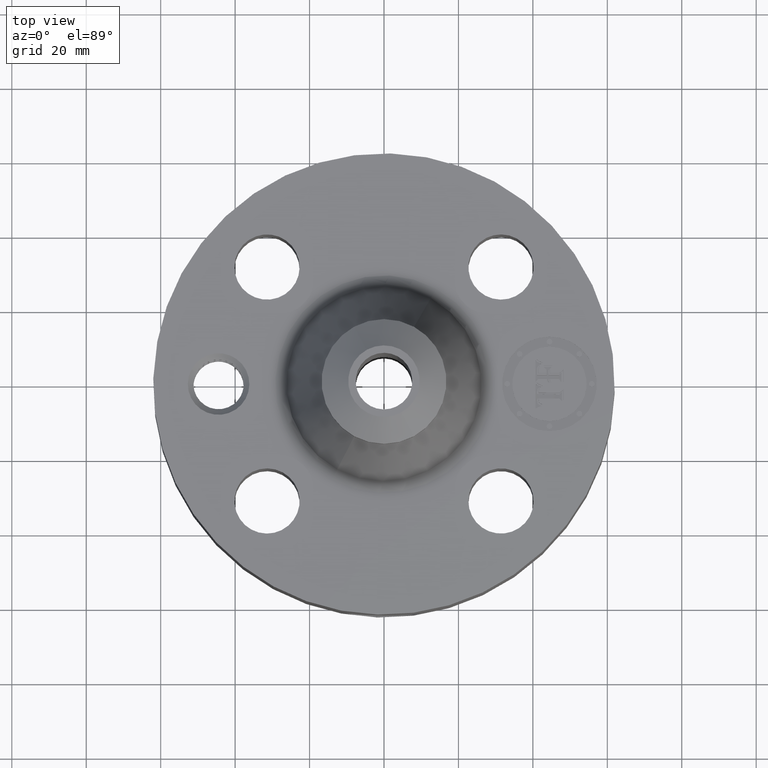
[diagram: clean part render]
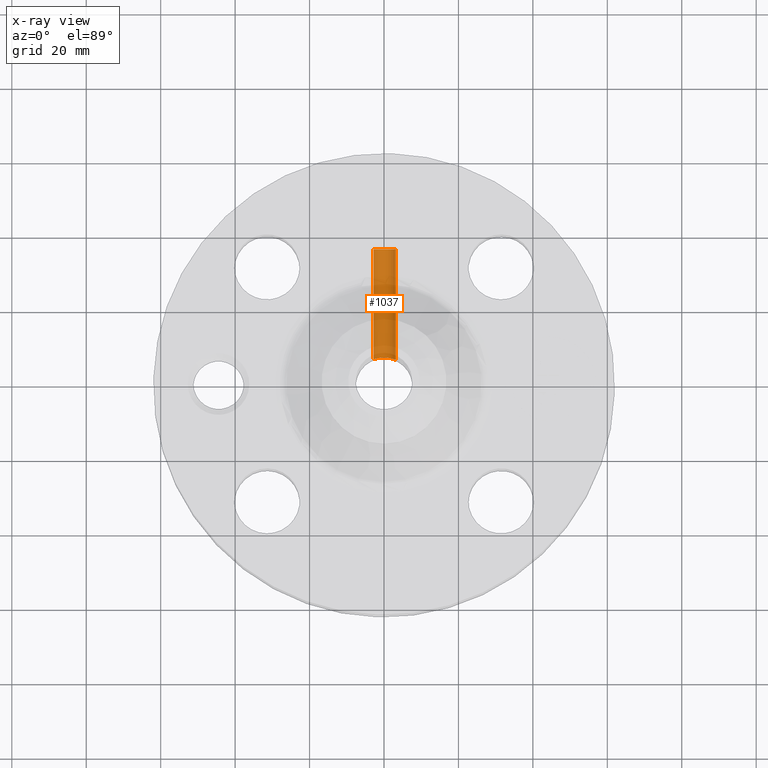
[diagram: x-ray — body ghosted, one internal face saturated and labeled with its STEP entity id]
A machine part, top view, then the same camera in x-ray: the body is ghosted and one INTERNAL B-rep face — a face not visible from any outside direction — is saturated and labeled: STEP entity #1037.
In plain terms, the highlighted cylindrical surface (edge-blend (fillet) strip) has radius 3.175 mm, axis along (-0, -1, 0).
Its self-contained STEP definition (entity closure, byte-faithful):
#1010=AXIS2_PLACEMENT_3D('Cylinder Axis2P3D',#1007,#1008,#1009) ;
#1021=AXIS2_PLACEMENT_3D('Circle Axis2P3D',#1019,#1020,$) ;
#568=CARTESIAN_POINT('Vertex',(0.109697820237,0.27868734854,0.809928192329)) ;
#570=CARTESIAN_POINT('Vertex',(-0.109697820237,0.27868734854,0.690071807677)) ;
#574=CARTESIAN_POINT('Control Point',(-0.109697820237,0.27868734854,0.690071807677)) ;
#575=CARTESIAN_POINT('Control Point',(-0.0997426920816,0.282605918451,0.671849067821)) ;
#576=CARTESIAN_POINT('Control Point',(-0.0860889660553,0.287466954598,0.655849602406)) ;
#577=CARTESIAN_POINT('Control Point',(-0.069386420787,0.292296009422,0.642854072799)) ;
#578=CARTESIAN_POINT('Control Point',(-0.0296008179116,0.299925034787,0.623682700526)) ;
#579=CARTESIAN_POINT('Control Point',(0.0153575584253,0.300496051531,0.622757103589)) ;
#580=CARTESIAN_POINT('Control Point',(0.0382924287864,0.298230729722,0.627818238949)) ;
#581=CARTESIAN_POINT('Control Point',(0.0760212985236,0.290868229207,0.645631071312)) ;
#582=CARTESIAN_POINT('Control Point',(0.10338182579,0.281494253502,0.67617953032)) ;
#583=CARTESIAN_POINT('Control Point',(0.113190038741,0.27744286343,0.692183829365)) ;
#584=CARTESIAN_POINT('Control Point',(0.125890866499,0.271826149207,0.725892633362)) ;
#585=CARTESIAN_POINT('Control Point',(0.126168205792,0.27160166412,0.762213438213)) ;
#586=CARTESIAN_POINT('Control Point',(0.1232846964,0.273009152136,0.7792751225)) ;
#587=CARTESIAN_POINT('Control Point',(0.117680296236,0.275545260383,0.795316368024)) ;
#588=CARTESIAN_POINT('Control Point',(0.109697820237,0.27868734854,0.809928192329)) ;
#1007=CARTESIAN_POINT('Axis2P3D Location',(4.18888635213E-016,2.43606299214,0.750000000003)) ;
#1012=CARTESIAN_POINT('Line Origine',(0.109697820237,0.857683921573,0.809928192329)) ;
#1016=CARTESIAN_POINT('Vertex',(0.109697820237,1.44321662097,0.809928192329)) ;
#1019=CARTESIAN_POINT('Axis2P3D Location',(2.3650571564E-016,1.44321662097,0.750000000003)) ;
#1023=CARTESIAN_POINT('Vertex',(-0.109697820237,1.44321662097,0.690071807677)) ;
#1026=CARTESIAN_POINT('Line Origine',(-0.109697820237,0.857683921573,0.690071807677)) ;
#1008=DIRECTION('Axis2P3D Direction',(-7.2321661367E-018,-0.0393700787402,0.)) ;
#1009=DIRECTION('Axis2P3D XDirection',(0.0345504945626,-6.34682288626E-018,0.0188750212049)) ;
#1013=DIRECTION('Vector Direction',(-7.64126024427E-018,-0.0393700787402,0.)) ;
#1020=DIRECTION('Axis2P3D Direction',(-7.2321661367E-018,-0.0393700787402,0.)) ;
#1027=DIRECTION('Vector Direction',(-7.64126024427E-018,-0.0393700787402,0.)) ;
#1014=VECTOR('Line Direction',#1013,0.0393700787402) ;
#1028=VECTOR('Line Direction',#1027,0.0393700787402) ;
#1032=ORIENTED_EDGE('',*,*,#589,.T.) ;
#1033=ORIENTED_EDGE('',*,*,#1018,.T.) ;
#1034=ORIENTED_EDGE('',*,*,#1025,.F.) ;
#1035=ORIENTED_EDGE('',*,*,#1030,.F.) ;
#1037=ADVANCED_FACE('PartBody',(#1036),#1011,.F.) ;
#573=B_SPLINE_CURVE_WITH_KNOTS('',5,(#574,#575,#576,#577,#578,#579,#580,#581,#582,#583,#584,#585,#586,#587,#588),.UNSPECIFIED.,.F.,.U.,(6,3,3,3,6),(0.,3.79527346775,7.85564849739,11.229502875,14.2727263166),.UNSPECIFIED.) ;
#1022=CIRCLE('generated circle',#1021,0.125000000001) ;
#1011=CYLINDRICAL_SURFACE('generated cylinder',#1010,0.125000000001) ;
#589=EDGE_CURVE('',#571,#569,#573,.T.) ;
#1018=EDGE_CURVE('',#569,#1017,#1015,.F.) ;
#1025=EDGE_CURVE('',#1024,#1017,#1022,.T.) ;
#1030=EDGE_CURVE('',#571,#1024,#1029,.F.) ;
#1031=EDGE_LOOP('',(#1032,#1033,#1034,#1035)) ;
#1036=FACE_OUTER_BOUND('',#1031,.T.) ;
#1015=LINE('Line',#1012,#1014) ;
#1029=LINE('Line',#1026,#1028) ;
#569=VERTEX_POINT('',#568) ;
#571=VERTEX_POINT('',#570) ;
#1017=VERTEX_POINT('',#1016) ;
#1024=VERTEX_POINT('',#1023) ;